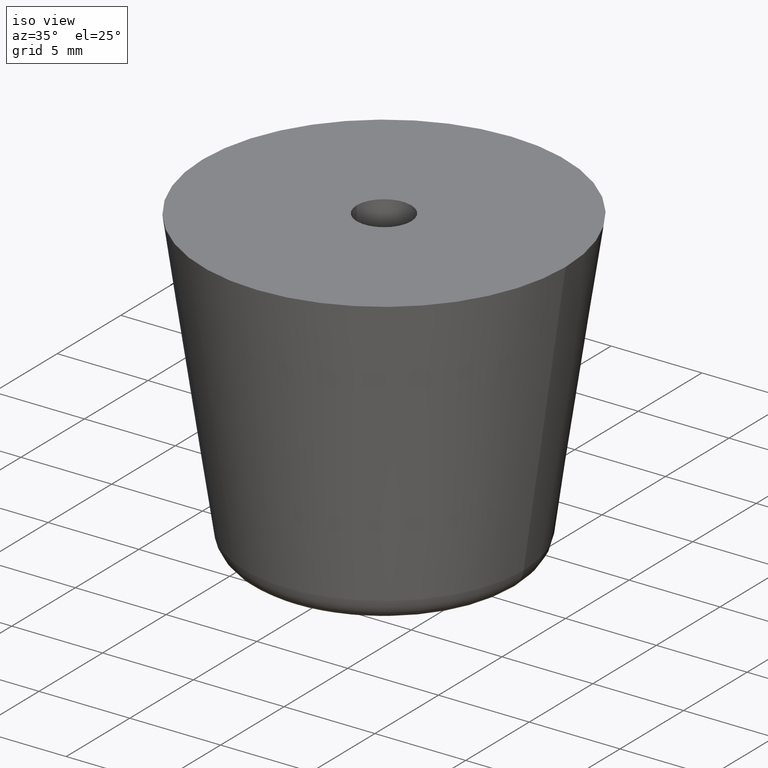
[diagram: clean part render]
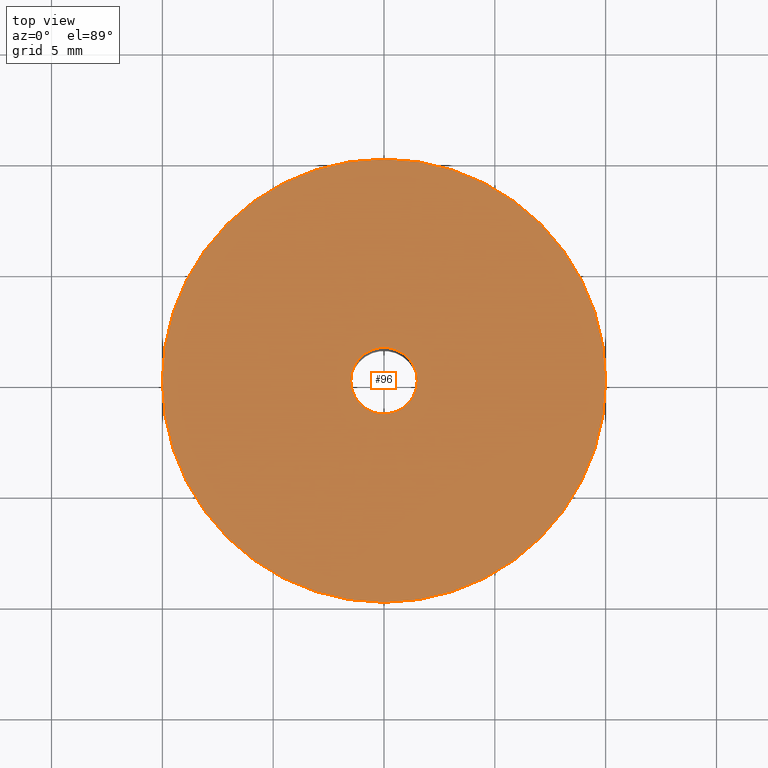
[diagram: tour spotlight — one face highlighted and labeled with its STEP entity id]
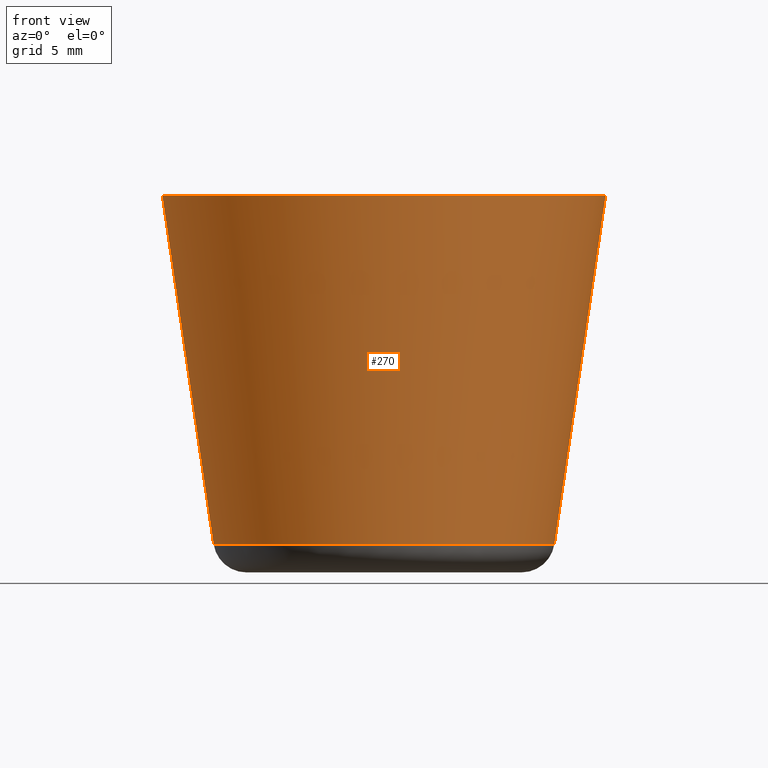
[diagram: tour spotlight — one face highlighted and labeled with its STEP entity id]
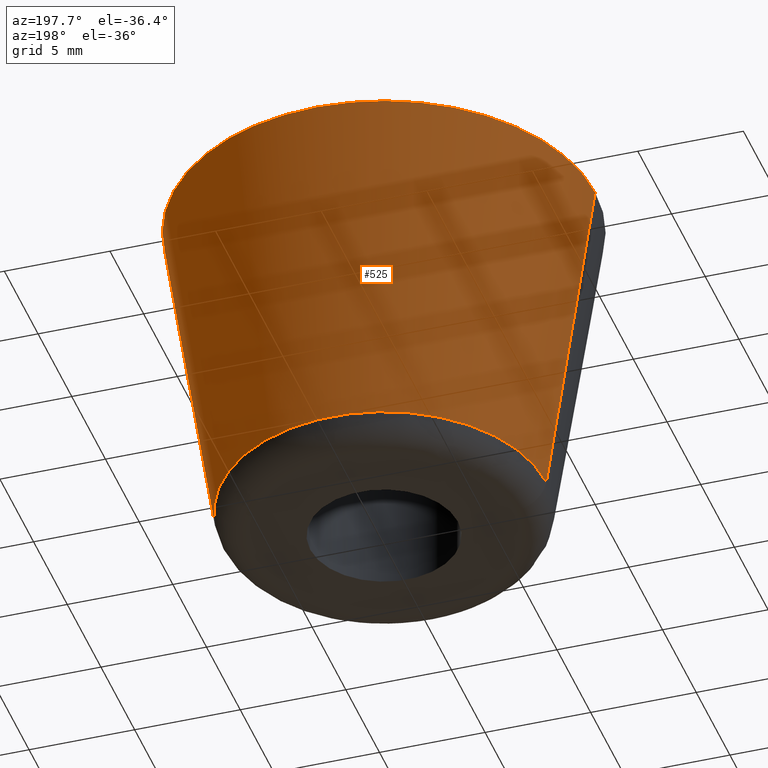
[diagram: tour spotlight — one face highlighted and labeled with its STEP entity id]
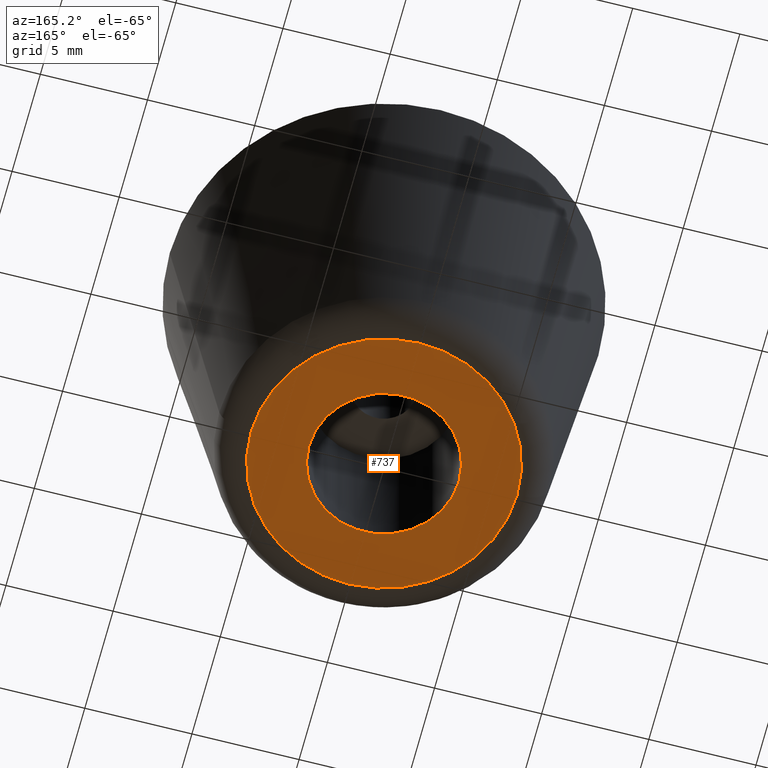
[diagram: tour spotlight — one face highlighted and labeled with its STEP entity id]
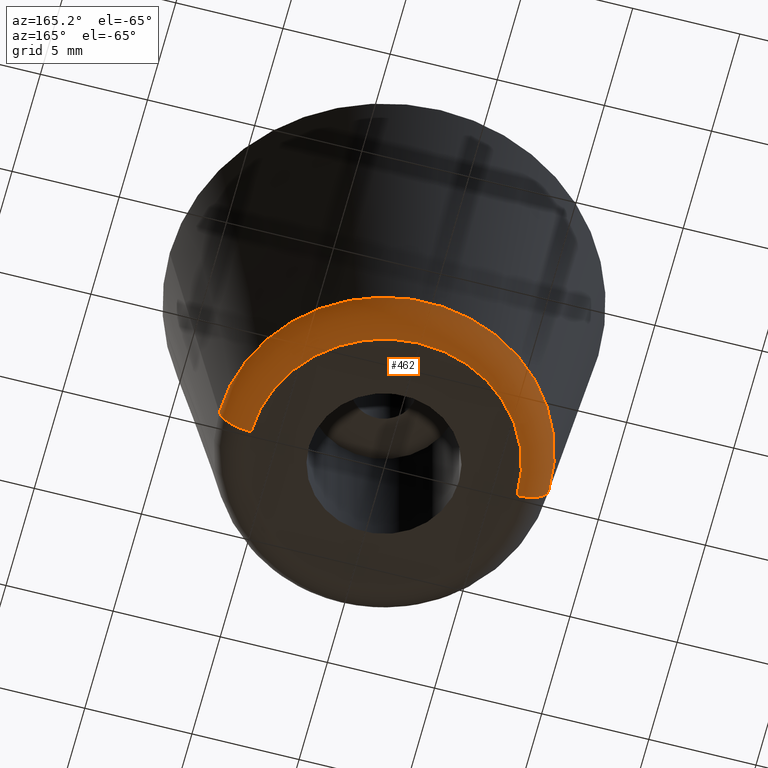
[diagram: tour spotlight — one face highlighted and labeled with its STEP entity id]
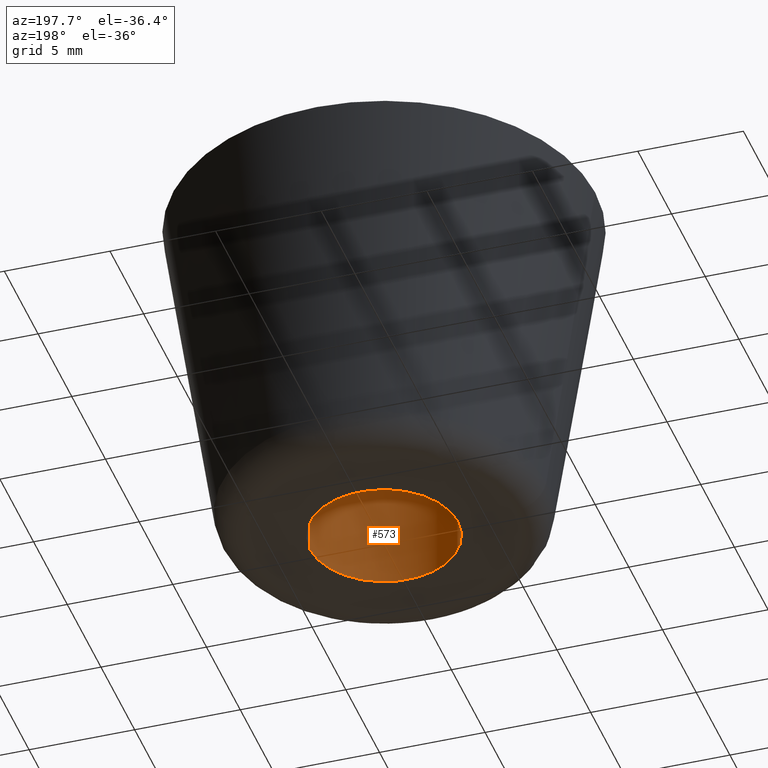
[diagram: tour spotlight — one face highlighted and labeled with its STEP entity id]
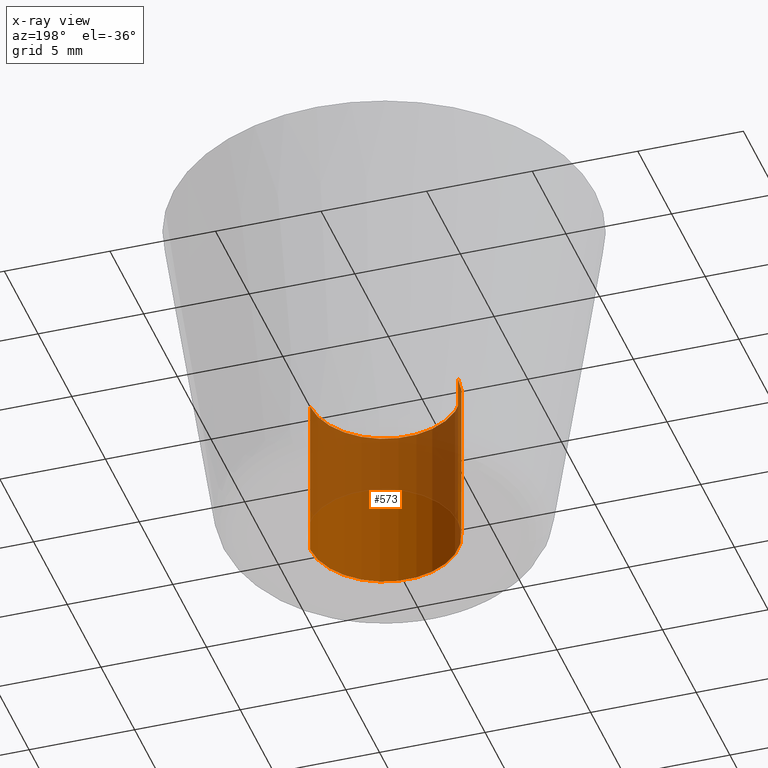
[diagram: x-ray of the same camera — body ghosted, this tour face saturated]
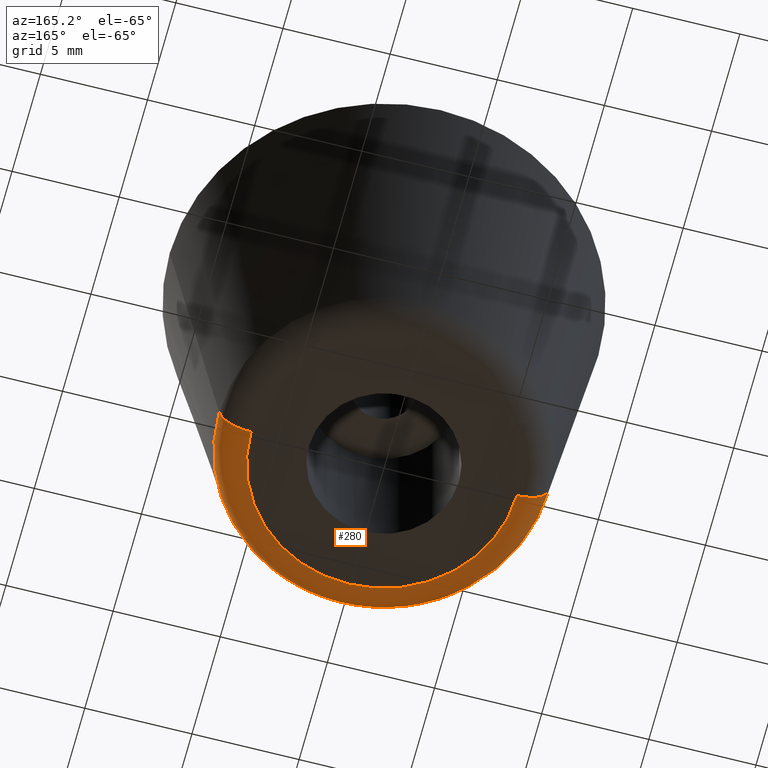
[diagram: tour spotlight — one face highlighted and labeled with its STEP entity id]
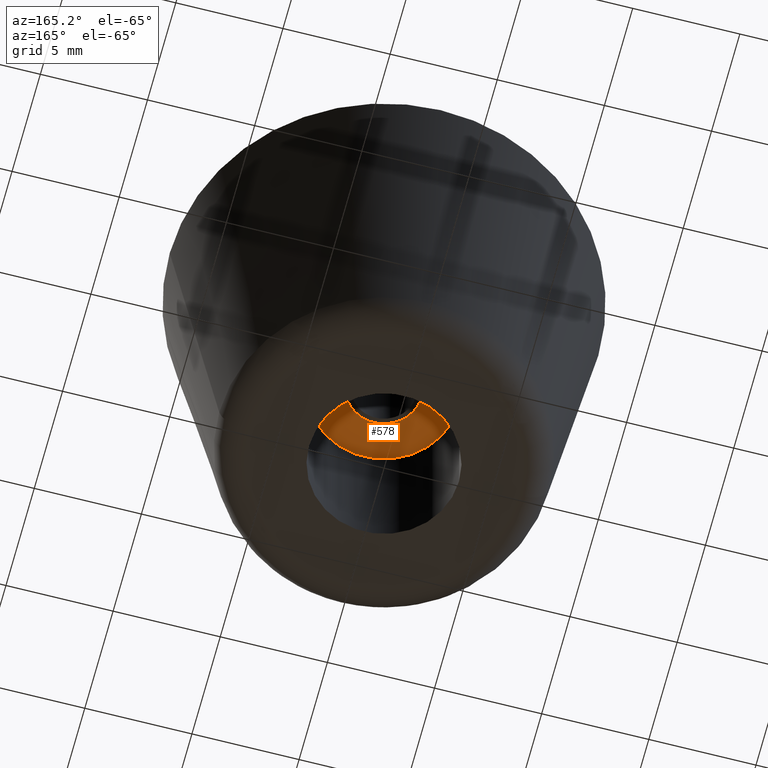
[diagram: tour spotlight — one face highlighted and labeled with its STEP entity id]
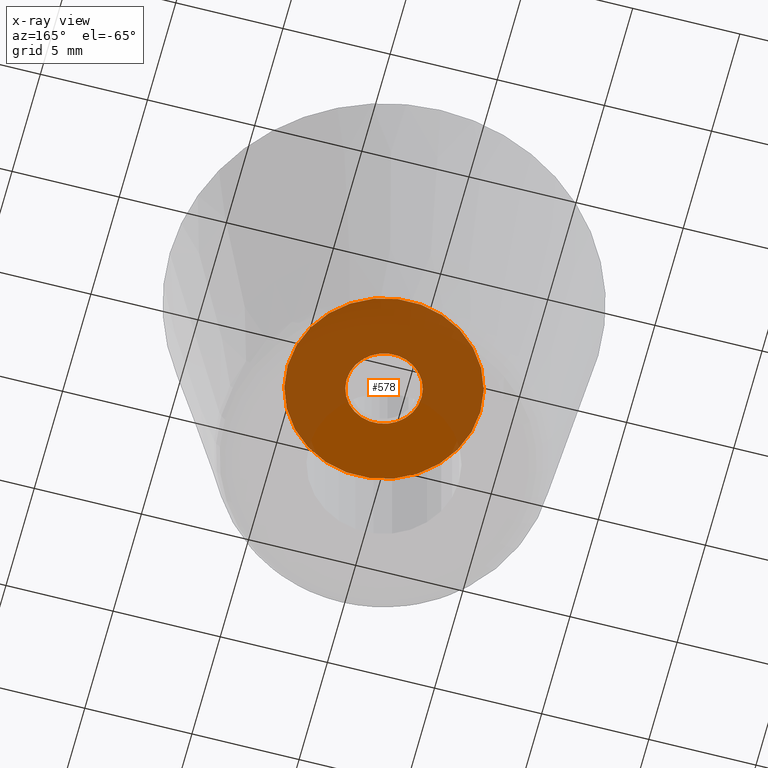
[diagram: x-ray of the same camera — body ghosted, this tour face saturated]
A machine part: a face-by-face anatomy tour. The part has 23 B-rep faces; the first image is the clean iso view, then the 8 largest visible faces are spotlighted one at a time (largest first), each with its STEP entity span.

Face 1 — top view, entity #96. In plain terms, the highlighted planar face has unit normal (0, 0, -1).
Definition (entity closure, byte-faithful):
#50 = DIRECTION ( 'NONE',  ( 0.0000000000000000000, 0.0000000000000000000, -1.000000000000000000 ) ) ;
#53 = FACE_OUTER_BOUND ( 'NONE', #454, .T. ) ;
#65 = CIRCLE ( 'NONE', #160, 10.00000000000000000 ) ;
#96 = ADVANCED_FACE ( 'NONE', ( #53, #376 ), #732, .F. ) ;
#147 = DIRECTION ( 'NONE',  ( 0.0000000000000000000, 0.0000000000000000000, -1.000000000000000000 ) ) ;
#151 = DIRECTION ( 'NONE',  ( 0.0000000000000000000, 0.0000000000000000000, -1.000000000000000000 ) ) ;
#160 = AXIS2_PLACEMENT_3D ( 'NONE', #307, #716, #369 ) ;
#161 = CARTESIAN_POINT ( 'NONE',  ( 10.00000000000000000, 0.0000000000000000000, 17.00000000000000000 ) ) ;
#175 = EDGE_CURVE ( 'NONE', #466, #616, #635, .T. ) ;
#218 = CARTESIAN_POINT ( 'NONE',  ( 1.500000000000000000, 1.836970198721029900E-016, 17.00000000000000000 ) ) ;
#235 = EDGE_CURVE ( 'NONE', #657, #761, #275, .T. ) ;
#261 = DIRECTION ( 'NONE',  ( -1.000000000000000000, 0.0000000000000000000, 0.0000000000000000000 ) ) ;
#266 = CARTESIAN_POINT ( 'NONE',  ( 0.0000000000000000000, 0.0000000000000000000, 17.00000000000000000 ) ) ;
#275 = CIRCLE ( 'NONE', #505, 1.500000000000000000 ) ;
#303 = ORIENTED_EDGE ( 'NONE', *, *, #175, .F. ) ;
#307 = CARTESIAN_POINT ( 'NONE',  ( 0.0000000000000000000, 0.0000000000000000000, 17.00000000000000000 ) ) ;
#329 = DIRECTION ( 'NONE',  ( -1.000000000000000000, 0.0000000000000000000, 0.0000000000000000000 ) ) ;
#330 = EDGE_CURVE ( 'NONE', #761, #657, #690, .T. ) ;
#369 = DIRECTION ( 'NONE',  ( -1.000000000000000000, 0.0000000000000000000, 0.0000000000000000000 ) ) ;
#376 = FACE_BOUND ( 'NONE', #554, .T. ) ;
#404 = ORIENTED_EDGE ( 'NONE', *, *, #448, .F. ) ;
#407 = CARTESIAN_POINT ( 'NONE',  ( 0.0000000000000000000, 0.0000000000000000000, 17.00000000000000000 ) ) ;
#411 = ORIENTED_EDGE ( 'NONE', *, *, #330, .T. ) ;
#448 = EDGE_CURVE ( 'NONE', #616, #466, #65, .T. ) ;
#454 = EDGE_LOOP ( 'NONE', ( #404, #303 ) ) ;
#466 = VERTEX_POINT ( 'NONE', #751 ) ;
#471 = DIRECTION ( 'NONE',  ( -1.000000000000000000, 0.0000000000000000000, 0.0000000000000000000 ) ) ;
#505 = AXIS2_PLACEMENT_3D ( 'NONE', #518, #151, #572 ) ;
#514 = CARTESIAN_POINT ( 'NONE',  ( 1.500000000000000000, 0.0000000000000000000, 17.00000000000000000 ) ) ;
#518 = CARTESIAN_POINT ( 'NONE',  ( 0.0000000000000000000, 0.0000000000000000000, 17.00000000000000000 ) ) ;
#542 = CARTESIAN_POINT ( 'NONE',  ( -1.500000000000000000, 0.0000000000000000000, 17.00000000000000000 ) ) ;
#547 = AXIS2_PLACEMENT_3D ( 'NONE', #514, #147, #261 ) ;
#554 = EDGE_LOOP ( 'NONE', ( #411, #643 ) ) ;
#572 = DIRECTION ( 'NONE',  ( -1.000000000000000000, 0.0000000000000000000, 0.0000000000000000000 ) ) ;
#616 = VERTEX_POINT ( 'NONE', #161 ) ;
#635 = CIRCLE ( 'NONE', #695, 10.00000000000000000 ) ;
#643 = ORIENTED_EDGE ( 'NONE', *, *, #235, .T. ) ;
#657 = VERTEX_POINT ( 'NONE', #218 ) ;
#678 = DIRECTION ( 'NONE',  ( 0.0000000000000000000, 0.0000000000000000000, -1.000000000000000000 ) ) ;
#690 = CIRCLE ( 'NONE', #696, 1.500000000000000000 ) ;
#695 = AXIS2_PLACEMENT_3D ( 'NONE', #407, #50, #471 ) ;
#696 = AXIS2_PLACEMENT_3D ( 'NONE', #266, #678, #329 ) ;
#716 = DIRECTION ( 'NONE',  ( 0.0000000000000000000, 0.0000000000000000000, -1.000000000000000000 ) ) ;
#732 = PLANE ( 'NONE',  #547 ) ;
#751 = CARTESIAN_POINT ( 'NONE',  ( -10.00000000000000000, 1.224646799147353300E-015, 17.00000000000000000 ) ) ;
#761 = VERTEX_POINT ( 'NONE', #542 ) ;

Face 2 — front view, entity #270. In plain terms, the highlighted conical surface has half-angle 8.366 deg.
Definition (entity closure, byte-faithful):
#30 = CARTESIAN_POINT ( 'NONE',  ( 0.0000000000000000000, 0.0000000000000000000, 17.00000000000000000 ) ) ;
#65 = CIRCLE ( 'NONE', #160, 10.00000000000000000 ) ;
#70 = VECTOR ( 'NONE', #629, 1000.000000000000100 ) ;
#74 = EDGE_CURVE ( 'NONE', #733, #616, #89, .T. ) ;
#83 = DIRECTION ( 'NONE',  ( -0.1454939886827439900, 1.781787475355036500E-017, 0.9893591356313365900 ) ) ;
#87 = DIRECTION ( 'NONE',  ( 0.0000000000000000000, 0.0000000000000000000, 1.000000000000000000 ) ) ;
#89 = LINE ( 'NONE', #128, #70 ) ;
#90 = EDGE_CURVE ( 'NONE', #427, #466, #688, .T. ) ;
#128 = CARTESIAN_POINT ( 'NONE',  ( 10.00000000000000000, 0.0000000000000000000, 17.00000000000000000 ) ) ;
#146 = CARTESIAN_POINT ( 'NONE',  ( 7.688494000000000400, 0.0000000000000000000, 1.281758999999894000 ) ) ;
#160 = AXIS2_PLACEMENT_3D ( 'NONE', #307, #716, #369 ) ;
#161 = CARTESIAN_POINT ( 'NONE',  ( 10.00000000000000000, 0.0000000000000000000, 17.00000000000000000 ) ) ;
#166 = CARTESIAN_POINT ( 'NONE',  ( 0.0000000000000000000, 0.0000000000000000000, 1.281758999999894000 ) ) ;
#210 = DIRECTION ( 'NONE',  ( 1.000000000000000000, 0.0000000000000000000, 0.0000000000000000000 ) ) ;
#221 = DIRECTION ( 'NONE',  ( -1.000000000000000000, 0.0000000000000000000, 0.0000000000000000000 ) ) ;
#270 = ADVANCED_FACE ( 'NONE', ( #671 ), #707, .T. ) ;
#281 = AXIS2_PLACEMENT_3D ( 'NONE', #166, #585, #221 ) ;
#286 = ORIENTED_EDGE ( 'NONE', *, *, #74, .T. ) ;
#307 = CARTESIAN_POINT ( 'NONE',  ( 0.0000000000000000000, 0.0000000000000000000, 17.00000000000000000 ) ) ;
#369 = DIRECTION ( 'NONE',  ( -1.000000000000000000, 0.0000000000000000000, 0.0000000000000000000 ) ) ;
#427 = VERTEX_POINT ( 'NONE', #541 ) ;
#432 = ORIENTED_EDGE ( 'NONE', *, *, #90, .F. ) ;
#445 = CARTESIAN_POINT ( 'NONE',  ( -10.00000000000000000, 1.224646799147353300E-015, 17.00000000000000000 ) ) ;
#448 = EDGE_CURVE ( 'NONE', #616, #466, #65, .T. ) ;
#466 = VERTEX_POINT ( 'NONE', #751 ) ;
#503 = EDGE_LOOP ( 'NONE', ( #432, #736, #286, #667 ) ) ;
#538 = VECTOR ( 'NONE', #83, 1000.000000000000100 ) ;
#541 = CARTESIAN_POINT ( 'NONE',  ( -7.688494000000000400, 1.083107877941858300E-015, 1.281758999999894000 ) ) ;
#548 = AXIS2_PLACEMENT_3D ( 'NONE', #30, #87, #210 ) ;
#585 = DIRECTION ( 'NONE',  ( 0.0000000000000000000, 0.0000000000000000000, -1.000000000000000000 ) ) ;
#616 = VERTEX_POINT ( 'NONE', #161 ) ;
#629 = DIRECTION ( 'NONE',  ( 0.1454939886827439900, 0.0000000000000000000, 0.9893591356313365900 ) ) ;
#667 = ORIENTED_EDGE ( 'NONE', *, *, #448, .T. ) ;
#671 = FACE_OUTER_BOUND ( 'NONE', #503, .T. ) ;
#684 = EDGE_CURVE ( 'NONE', #733, #427, #726, .T. ) ;
#688 = LINE ( 'NONE', #445, #538 ) ;
#707 = CONICAL_SURFACE ( 'NONE', #548, 10.00000000000000000, 0.1460122558796984600 ) ;
#716 = DIRECTION ( 'NONE',  ( 0.0000000000000000000, 0.0000000000000000000, -1.000000000000000000 ) ) ;
#726 = CIRCLE ( 'NONE', #281, 7.688493999999999500 ) ;
#733 = VERTEX_POINT ( 'NONE', #146 ) ;
#736 = ORIENTED_EDGE ( 'NONE', *, *, #684, .F. ) ;
#751 = CARTESIAN_POINT ( 'NONE',  ( -10.00000000000000000, 1.224646799147353300E-015, 17.00000000000000000 ) ) ;

Face 3 — auxiliary view, entity #525. In plain terms, the highlighted conical surface has half-angle 8.366 deg.
Definition (entity closure, byte-faithful):
#19 = CIRCLE ( 'NONE', #725, 7.688493999999999500 ) ;
#44 = CONICAL_SURFACE ( 'NONE', #441, 10.00000000000000000, 0.1460122558796984600 ) ;
#50 = DIRECTION ( 'NONE',  ( 0.0000000000000000000, 0.0000000000000000000, -1.000000000000000000 ) ) ;
#70 = VECTOR ( 'NONE', #629, 1000.000000000000100 ) ;
#74 = EDGE_CURVE ( 'NONE', #733, #616, #89, .T. ) ;
#83 = DIRECTION ( 'NONE',  ( -0.1454939886827439900, 1.781787475355036500E-017, 0.9893591356313365900 ) ) ;
#89 = LINE ( 'NONE', #128, #70 ) ;
#90 = EDGE_CURVE ( 'NONE', #427, #466, #688, .T. ) ;
#100 = DIRECTION ( 'NONE',  ( 1.000000000000000000, 0.0000000000000000000, 0.0000000000000000000 ) ) ;
#128 = CARTESIAN_POINT ( 'NONE',  ( 10.00000000000000000, 0.0000000000000000000, 17.00000000000000000 ) ) ;
#146 = CARTESIAN_POINT ( 'NONE',  ( 7.688494000000000400, 0.0000000000000000000, 1.281758999999894000 ) ) ;
#161 = CARTESIAN_POINT ( 'NONE',  ( 10.00000000000000000, 0.0000000000000000000, 17.00000000000000000 ) ) ;
#175 = EDGE_CURVE ( 'NONE', #466, #616, #635, .T. ) ;
#196 = EDGE_LOOP ( 'NONE', ( #558, #584, #217, #430 ) ) ;
#217 = ORIENTED_EDGE ( 'NONE', *, *, #175, .T. ) ;
#302 = DIRECTION ( 'NONE',  ( 0.0000000000000000000, 0.0000000000000000000, -1.000000000000000000 ) ) ;
#390 = EDGE_CURVE ( 'NONE', #427, #733, #19, .T. ) ;
#407 = CARTESIAN_POINT ( 'NONE',  ( 0.0000000000000000000, 0.0000000000000000000, 17.00000000000000000 ) ) ;
#427 = VERTEX_POINT ( 'NONE', #541 ) ;
#430 = ORIENTED_EDGE ( 'NONE', *, *, #74, .F. ) ;
#441 = AXIS2_PLACEMENT_3D ( 'NONE', #532, #586, #100 ) ;
#445 = CARTESIAN_POINT ( 'NONE',  ( -10.00000000000000000, 1.224646799147353300E-015, 17.00000000000000000 ) ) ;
#466 = VERTEX_POINT ( 'NONE', #751 ) ;
#471 = DIRECTION ( 'NONE',  ( -1.000000000000000000, 0.0000000000000000000, 0.0000000000000000000 ) ) ;
#525 = ADVANCED_FACE ( 'NONE', ( #551 ), #44, .T. ) ;
#532 = CARTESIAN_POINT ( 'NONE',  ( 0.0000000000000000000, 0.0000000000000000000, 17.00000000000000000 ) ) ;
#538 = VECTOR ( 'NONE', #83, 1000.000000000000100 ) ;
#541 = CARTESIAN_POINT ( 'NONE',  ( -7.688494000000000400, 1.083107877941858300E-015, 1.281758999999894000 ) ) ;
#551 = FACE_OUTER_BOUND ( 'NONE', #196, .T. ) ;
#558 = ORIENTED_EDGE ( 'NONE', *, *, #390, .F. ) ;
#584 = ORIENTED_EDGE ( 'NONE', *, *, #90, .T. ) ;
#586 = DIRECTION ( 'NONE',  ( 0.0000000000000000000, 0.0000000000000000000, 1.000000000000000000 ) ) ;
#616 = VERTEX_POINT ( 'NONE', #161 ) ;
#629 = DIRECTION ( 'NONE',  ( 0.1454939886827439900, 0.0000000000000000000, 0.9893591356313365900 ) ) ;
#635 = CIRCLE ( 'NONE', #695, 10.00000000000000000 ) ;
#654 = CARTESIAN_POINT ( 'NONE',  ( 0.0000000000000000000, 0.0000000000000000000, 1.281758999999894000 ) ) ;
#688 = LINE ( 'NONE', #445, #538 ) ;
#695 = AXIS2_PLACEMENT_3D ( 'NONE', #407, #50, #471 ) ;
#711 = DIRECTION ( 'NONE',  ( -1.000000000000000000, 0.0000000000000000000, 0.0000000000000000000 ) ) ;
#725 = AXIS2_PLACEMENT_3D ( 'NONE', #654, #302, #711 ) ;
#733 = VERTEX_POINT ( 'NONE', #146 ) ;
#751 = CARTESIAN_POINT ( 'NONE',  ( -10.00000000000000000, 1.224646799147353300E-015, 17.00000000000000000 ) ) ;

Face 4 — auxiliary view, entity #737. In plain terms, the highlighted planar face has unit normal (0, 0, 1).
Definition (entity closure, byte-faithful):
#3 = AXIS2_PLACEMENT_3D ( 'NONE', #483, #113, #545 ) ;
#4 = ORIENTED_EDGE ( 'NONE', *, *, #670, .F. ) ;
#18 = CIRCLE ( 'NONE', #623, 3.500000000000000000 ) ;
#22 = CARTESIAN_POINT ( 'NONE',  ( 6.204455000000000300, 8.506977582544995100E-016, 0.0000000000000000000 ) ) ;
#24 = FACE_OUTER_BOUND ( 'NONE', #627, .T. ) ;
#31 = EDGE_CURVE ( 'NONE', #331, #313, #628, .T. ) ;
#41 = CARTESIAN_POINT ( 'NONE',  ( -3.500000000000000000, 0.0000000000000000000, 0.0000000000000000000 ) ) ;
#45 = DIRECTION ( 'NONE',  ( 0.0000000000000000000, 0.0000000000000000000, -1.000000000000000000 ) ) ;
#84 = ORIENTED_EDGE ( 'NONE', *, *, #31, .T. ) ;
#107 = ORIENTED_EDGE ( 'NONE', *, *, #429, .T. ) ;
#113 = DIRECTION ( 'NONE',  ( 0.0000000000000000000, 0.0000000000000000000, -1.000000000000000000 ) ) ;
#129 = EDGE_LOOP ( 'NONE', ( #718, #4 ) ) ;
#152 = EDGE_CURVE ( 'NONE', #475, #740, #18, .T. ) ;
#163 = CARTESIAN_POINT ( 'NONE',  ( 3.500000000000000000, 4.286263797015736600E-016, 0.0000000000000000000 ) ) ;
#192 = CARTESIAN_POINT ( 'NONE',  ( 0.0000000000000000000, 0.0000000000000000000, 0.0000000000000000000 ) ) ;
#228 = CARTESIAN_POINT ( 'NONE',  ( 6.204455000000000300, 0.0000000000000000000, 0.0000000000000000000 ) ) ;
#257 = DIRECTION ( 'NONE',  ( -1.000000000000000000, 0.0000000000000000000, 0.0000000000000000000 ) ) ;
#267 = CARTESIAN_POINT ( 'NONE',  ( 0.0000000000000000000, 0.0000000000000000000, 0.0000000000000000000 ) ) ;
#298 = DIRECTION ( 'NONE',  ( 1.000000000000000000, 0.0000000000000000000, 0.0000000000000000000 ) ) ;
#313 = VERTEX_POINT ( 'NONE', #568 ) ;
#324 = AXIS2_PLACEMENT_3D ( 'NONE', #400, #45, #467 ) ;
#331 = VERTEX_POINT ( 'NONE', #22 ) ;
#334 = DIRECTION ( 'NONE',  ( -1.000000000000000000, 0.0000000000000000000, 0.0000000000000000000 ) ) ;
#381 = CIRCLE ( 'NONE', #3, 6.204455000000000300 ) ;
#400 = CARTESIAN_POINT ( 'NONE',  ( 0.0000000000000000000, 0.0000000000000000000, 0.0000000000000000000 ) ) ;
#429 = EDGE_CURVE ( 'NONE', #313, #331, #381, .T. ) ;
#443 = AXIS2_PLACEMENT_3D ( 'NONE', #228, #649, #298 ) ;
#467 = DIRECTION ( 'NONE',  ( -1.000000000000000000, 0.0000000000000000000, 0.0000000000000000000 ) ) ;
#475 = VERTEX_POINT ( 'NONE', #41 ) ;
#483 = CARTESIAN_POINT ( 'NONE',  ( 0.0000000000000000000, 0.0000000000000000000, 0.0000000000000000000 ) ) ;
#486 = AXIS2_PLACEMENT_3D ( 'NONE', #267, #682, #334 ) ;
#545 = DIRECTION ( 'NONE',  ( -1.000000000000000000, 0.0000000000000000000, 0.0000000000000000000 ) ) ;
#568 = CARTESIAN_POINT ( 'NONE',  ( -6.204455000000000300, 0.0000000000000000000, 0.0000000000000000000 ) ) ;
#592 = PLANE ( 'NONE',  #443 ) ;
#599 = CIRCLE ( 'NONE', #324, 3.500000000000000000 ) ;
#620 = DIRECTION ( 'NONE',  ( 0.0000000000000000000, 0.0000000000000000000, -1.000000000000000000 ) ) ;
#623 = AXIS2_PLACEMENT_3D ( 'NONE', #192, #620, #257 ) ;
#627 = EDGE_LOOP ( 'NONE', ( #107, #84 ) ) ;
#628 = CIRCLE ( 'NONE', #486, 6.204455000000000300 ) ;
#649 = DIRECTION ( 'NONE',  ( 0.0000000000000000000, 0.0000000000000000000, 1.000000000000000000 ) ) ;
#670 = EDGE_CURVE ( 'NONE', #740, #475, #599, .T. ) ;
#682 = DIRECTION ( 'NONE',  ( 0.0000000000000000000, 0.0000000000000000000, -1.000000000000000000 ) ) ;
#718 = ORIENTED_EDGE ( 'NONE', *, *, #152, .F. ) ;
#737 = ADVANCED_FACE ( 'NONE', ( #747, #24 ), #592, .F. ) ;
#740 = VERTEX_POINT ( 'NONE', #163 ) ;
#747 = FACE_BOUND ( 'NONE', #129, .T. ) ;

Face 5 — auxiliary view, entity #462. In plain terms, the highlighted toroidal blend (fillet) surface has major radius 6.2045 mm and minor (blend) radius 1.5 mm.
Definition (entity closure, byte-faithful):
#3 = AXIS2_PLACEMENT_3D ( 'NONE', #483, #113, #545 ) ;
#16 = EDGE_CURVE ( 'NONE', #427, #313, #473, .T. ) ;
#19 = CIRCLE ( 'NONE', #725, 7.688493999999999500 ) ;
#22 = CARTESIAN_POINT ( 'NONE',  ( 6.204455000000000300, 8.506977582544995100E-016, 0.0000000000000000000 ) ) ;
#86 = DIRECTION ( 'NONE',  ( -0.0000000000000000000, -1.000000000000000000, -0.0000000000000000000 ) ) ;
#91 = ORIENTED_EDGE ( 'NONE', *, *, #16, .F. ) ;
#99 = DIRECTION ( 'NONE',  ( 0.0000000000000000000, 0.0000000000000000000, -1.000000000000000000 ) ) ;
#113 = DIRECTION ( 'NONE',  ( 0.0000000000000000000, 0.0000000000000000000, -1.000000000000000000 ) ) ;
#135 = ORIENTED_EDGE ( 'NONE', *, *, #553, .T. ) ;
#146 = CARTESIAN_POINT ( 'NONE',  ( 7.688494000000000400, 0.0000000000000000000, 1.281758999999894000 ) ) ;
#149 = DIRECTION ( 'NONE',  ( 0.0000000000000000000, 0.0000000000000000000, -1.000000000000000000 ) ) ;
#216 = ORIENTED_EDGE ( 'NONE', *, *, #390, .T. ) ;
#302 = DIRECTION ( 'NONE',  ( 0.0000000000000000000, 0.0000000000000000000, -1.000000000000000000 ) ) ;
#305 = DIRECTION ( 'NONE',  ( -1.224646799147353200E-016, 1.000000000000000000, 0.0000000000000000000 ) ) ;
#313 = VERTEX_POINT ( 'NONE', #568 ) ;
#331 = VERTEX_POINT ( 'NONE', #22 ) ;
#365 = AXIS2_PLACEMENT_3D ( 'NONE', #465, #99, #530 ) ;
#381 = CIRCLE ( 'NONE', #3, 6.204455000000000300 ) ;
#390 = EDGE_CURVE ( 'NONE', #427, #733, #19, .T. ) ;
#395 = AXIS2_PLACEMENT_3D ( 'NONE', #659, #305, #714 ) ;
#427 = VERTEX_POINT ( 'NONE', #541 ) ;
#429 = EDGE_CURVE ( 'NONE', #313, #331, #381, .T. ) ;
#440 = AXIS2_PLACEMENT_3D ( 'NONE', #526, #86, #149 ) ;
#462 = ADVANCED_FACE ( 'NONE', ( #679 ), #515, .T. ) ;
#465 = CARTESIAN_POINT ( 'NONE',  ( 0.0000000000000000000, 0.0000000000000000000, 1.500000000000000000 ) ) ;
#473 = CIRCLE ( 'NONE', #440, 1.500000000000000000 ) ;
#483 = CARTESIAN_POINT ( 'NONE',  ( 0.0000000000000000000, 0.0000000000000000000, 0.0000000000000000000 ) ) ;
#515 = TOROIDAL_SURFACE ( 'NONE', #365, 6.204455000000000300, 1.500000000000000000 ) ;
#526 = CARTESIAN_POINT ( 'NONE',  ( -6.204455000000000300, 0.0000000000000000000, 1.500000000000000000 ) ) ;
#530 = DIRECTION ( 'NONE',  ( -1.000000000000000000, 0.0000000000000000000, 0.0000000000000000000 ) ) ;
#541 = CARTESIAN_POINT ( 'NONE',  ( -7.688494000000000400, 1.083107877941858300E-015, 1.281758999999894000 ) ) ;
#545 = DIRECTION ( 'NONE',  ( -1.000000000000000000, 0.0000000000000000000, 0.0000000000000000000 ) ) ;
#553 = EDGE_CURVE ( 'NONE', #733, #331, #680, .T. ) ;
#567 = EDGE_LOOP ( 'NONE', ( #216, #135, #648, #91 ) ) ;
#568 = CARTESIAN_POINT ( 'NONE',  ( -6.204455000000000300, 0.0000000000000000000, 0.0000000000000000000 ) ) ;
#648 = ORIENTED_EDGE ( 'NONE', *, *, #429, .F. ) ;
#654 = CARTESIAN_POINT ( 'NONE',  ( 0.0000000000000000000, 0.0000000000000000000, 1.281758999999894000 ) ) ;
#659 = CARTESIAN_POINT ( 'NONE',  ( 6.204455000000000300, 7.598265956203791300E-016, 1.500000000000000000 ) ) ;
#679 = FACE_OUTER_BOUND ( 'NONE', #567, .T. ) ;
#680 = CIRCLE ( 'NONE', #395, 1.500000000000000400 ) ;
#711 = DIRECTION ( 'NONE',  ( -1.000000000000000000, 0.0000000000000000000, 0.0000000000000000000 ) ) ;
#714 = DIRECTION ( 'NONE',  ( -1.000000000000000000, -1.224646799147352700E-016, 0.0000000000000000000 ) ) ;
#725 = AXIS2_PLACEMENT_3D ( 'NONE', #654, #302, #711 ) ;
#733 = VERTEX_POINT ( 'NONE', #146 ) ;

Face 6 — auxiliary view, entity #573. An x-ray twin of the same camera follows (body ghosted, this face saturated) — the face is partly hidden behind the body. In plain terms, the highlighted cylindrical surface (partial cylindrical patch) has radius 3.5 mm, axis along (0, 0, -1).
Definition (entity closure, byte-faithful):
#8 = DIRECTION ( 'NONE',  ( -1.000000000000000000, 0.0000000000000000000, 0.0000000000000000000 ) ) ;
#41 = CARTESIAN_POINT ( 'NONE',  ( -3.500000000000000000, 0.0000000000000000000, 0.0000000000000000000 ) ) ;
#45 = DIRECTION ( 'NONE',  ( 0.0000000000000000000, 0.0000000000000000000, -1.000000000000000000 ) ) ;
#62 = ORIENTED_EDGE ( 'NONE', *, *, #632, .T. ) ;
#66 = VECTOR ( 'NONE', #750, 1000.000000000000000 ) ;
#125 = CARTESIAN_POINT ( 'NONE',  ( -3.500000000000000000, 0.0000000000000000000, 7.999999999999899600 ) ) ;
#145 = CARTESIAN_POINT ( 'NONE',  ( 0.0000000000000000000, 0.0000000000000000000, 7.999999999999899600 ) ) ;
#156 = VECTOR ( 'NONE', #319, 1000.000000000000000 ) ;
#159 = EDGE_CURVE ( 'NONE', #591, #475, #317, .T. ) ;
#163 = CARTESIAN_POINT ( 'NONE',  ( 3.500000000000000000, 4.286263797015736600E-016, 0.0000000000000000000 ) ) ;
#187 = LINE ( 'NONE', #639, #66 ) ;
#198 = AXIS2_PLACEMENT_3D ( 'NONE', #366, #603, #8 ) ;
#205 = DIRECTION ( 'NONE',  ( -1.000000000000000000, 0.0000000000000000000, 0.0000000000000000000 ) ) ;
#214 = CARTESIAN_POINT ( 'NONE',  ( 3.500000000000000000, 4.286263797015736600E-016, 7.999999999999899600 ) ) ;
#271 = ORIENTED_EDGE ( 'NONE', *, *, #322, .F. ) ;
#315 = EDGE_LOOP ( 'NONE', ( #271, #62, #738, #644 ) ) ;
#317 = LINE ( 'NONE', #728, #156 ) ;
#319 = DIRECTION ( 'NONE',  ( 0.0000000000000000000, 0.0000000000000000000, -1.000000000000000000 ) ) ;
#322 = EDGE_CURVE ( 'NONE', #614, #591, #377, .T. ) ;
#324 = AXIS2_PLACEMENT_3D ( 'NONE', #400, #45, #467 ) ;
#366 = CARTESIAN_POINT ( 'NONE',  ( 0.0000000000000000000, 0.0000000000000000000, 0.0000000000000000000 ) ) ;
#377 = CIRCLE ( 'NONE', #624, 3.500000000000000000 ) ;
#400 = CARTESIAN_POINT ( 'NONE',  ( 0.0000000000000000000, 0.0000000000000000000, 0.0000000000000000000 ) ) ;
#467 = DIRECTION ( 'NONE',  ( -1.000000000000000000, 0.0000000000000000000, 0.0000000000000000000 ) ) ;
#475 = VERTEX_POINT ( 'NONE', #41 ) ;
#509 = CYLINDRICAL_SURFACE ( 'NONE', #198, 3.500000000000000000 ) ;
#536 = FACE_OUTER_BOUND ( 'NONE', #315, .T. ) ;
#563 = DIRECTION ( 'NONE',  ( 0.0000000000000000000, 0.0000000000000000000, -1.000000000000000000 ) ) ;
#573 = ADVANCED_FACE ( 'NONE', ( #536 ), #509, .F. ) ;
#591 = VERTEX_POINT ( 'NONE', #125 ) ;
#599 = CIRCLE ( 'NONE', #324, 3.500000000000000000 ) ;
#603 = DIRECTION ( 'NONE',  ( 0.0000000000000000000, 0.0000000000000000000, -1.000000000000000000 ) ) ;
#614 = VERTEX_POINT ( 'NONE', #214 ) ;
#624 = AXIS2_PLACEMENT_3D ( 'NONE', #145, #563, #205 ) ;
#632 = EDGE_CURVE ( 'NONE', #614, #740, #187, .T. ) ;
#639 = CARTESIAN_POINT ( 'NONE',  ( 3.500000000000000000, 4.286263797015736600E-016, 0.0000000000000000000 ) ) ;
#644 = ORIENTED_EDGE ( 'NONE', *, *, #159, .F. ) ;
#670 = EDGE_CURVE ( 'NONE', #740, #475, #599, .T. ) ;
#728 = CARTESIAN_POINT ( 'NONE',  ( -3.500000000000000000, 0.0000000000000000000, 0.0000000000000000000 ) ) ;
#738 = ORIENTED_EDGE ( 'NONE', *, *, #670, .T. ) ;
#740 = VERTEX_POINT ( 'NONE', #163 ) ;
#750 = DIRECTION ( 'NONE',  ( 0.0000000000000000000, 0.0000000000000000000, -1.000000000000000000 ) ) ;

Face 7 — auxiliary view, entity #280. In plain terms, the highlighted toroidal blend (fillet) surface has major radius 6.2045 mm and minor (blend) radius 1.5 mm.
Definition (entity closure, byte-faithful):
#16 = EDGE_CURVE ( 'NONE', #427, #313, #473, .T. ) ;
#22 = CARTESIAN_POINT ( 'NONE',  ( 6.204455000000000300, 8.506977582544995100E-016, 0.0000000000000000000 ) ) ;
#31 = EDGE_CURVE ( 'NONE', #331, #313, #628, .T. ) ;
#78 = CARTESIAN_POINT ( 'NONE',  ( 0.0000000000000000000, 0.0000000000000000000, 1.500000000000000000 ) ) ;
#86 = DIRECTION ( 'NONE',  ( -0.0000000000000000000, -1.000000000000000000, -0.0000000000000000000 ) ) ;
#146 = CARTESIAN_POINT ( 'NONE',  ( 7.688494000000000400, 0.0000000000000000000, 1.281758999999894000 ) ) ;
#149 = DIRECTION ( 'NONE',  ( 0.0000000000000000000, 0.0000000000000000000, -1.000000000000000000 ) ) ;
#166 = CARTESIAN_POINT ( 'NONE',  ( 0.0000000000000000000, 0.0000000000000000000, 1.281758999999894000 ) ) ;
#173 = ORIENTED_EDGE ( 'NONE', *, *, #684, .T. ) ;
#221 = DIRECTION ( 'NONE',  ( -1.000000000000000000, 0.0000000000000000000, 0.0000000000000000000 ) ) ;
#230 = TOROIDAL_SURFACE ( 'NONE', #662, 6.204455000000000300, 1.500000000000000000 ) ;
#262 = DIRECTION ( 'NONE',  ( 0.0000000000000000000, 0.0000000000000000000, -1.000000000000000000 ) ) ;
#267 = CARTESIAN_POINT ( 'NONE',  ( 0.0000000000000000000, 0.0000000000000000000, 0.0000000000000000000 ) ) ;
#274 = ORIENTED_EDGE ( 'NONE', *, *, #553, .F. ) ;
#280 = ADVANCED_FACE ( 'NONE', ( #559 ), #230, .T. ) ;
#281 = AXIS2_PLACEMENT_3D ( 'NONE', #166, #585, #221 ) ;
#293 = ORIENTED_EDGE ( 'NONE', *, *, #31, .F. ) ;
#305 = DIRECTION ( 'NONE',  ( -1.224646799147353200E-016, 1.000000000000000000, 0.0000000000000000000 ) ) ;
#313 = VERTEX_POINT ( 'NONE', #568 ) ;
#331 = VERTEX_POINT ( 'NONE', #22 ) ;
#334 = DIRECTION ( 'NONE',  ( -1.000000000000000000, 0.0000000000000000000, 0.0000000000000000000 ) ) ;
#380 = DIRECTION ( 'NONE',  ( -1.000000000000000000, 0.0000000000000000000, 0.0000000000000000000 ) ) ;
#395 = AXIS2_PLACEMENT_3D ( 'NONE', #659, #305, #714 ) ;
#427 = VERTEX_POINT ( 'NONE', #541 ) ;
#440 = AXIS2_PLACEMENT_3D ( 'NONE', #526, #86, #149 ) ;
#473 = CIRCLE ( 'NONE', #440, 1.500000000000000000 ) ;
#486 = AXIS2_PLACEMENT_3D ( 'NONE', #267, #682, #334 ) ;
#523 = ORIENTED_EDGE ( 'NONE', *, *, #16, .T. ) ;
#526 = CARTESIAN_POINT ( 'NONE',  ( -6.204455000000000300, 0.0000000000000000000, 1.500000000000000000 ) ) ;
#541 = CARTESIAN_POINT ( 'NONE',  ( -7.688494000000000400, 1.083107877941858300E-015, 1.281758999999894000 ) ) ;
#553 = EDGE_CURVE ( 'NONE', #733, #331, #680, .T. ) ;
#559 = FACE_OUTER_BOUND ( 'NONE', #706, .T. ) ;
#568 = CARTESIAN_POINT ( 'NONE',  ( -6.204455000000000300, 0.0000000000000000000, 0.0000000000000000000 ) ) ;
#585 = DIRECTION ( 'NONE',  ( 0.0000000000000000000, 0.0000000000000000000, -1.000000000000000000 ) ) ;
#628 = CIRCLE ( 'NONE', #486, 6.204455000000000300 ) ;
#659 = CARTESIAN_POINT ( 'NONE',  ( 6.204455000000000300, 7.598265956203791300E-016, 1.500000000000000000 ) ) ;
#662 = AXIS2_PLACEMENT_3D ( 'NONE', #78, #262, #380 ) ;
#680 = CIRCLE ( 'NONE', #395, 1.500000000000000400 ) ;
#682 = DIRECTION ( 'NONE',  ( 0.0000000000000000000, 0.0000000000000000000, -1.000000000000000000 ) ) ;
#684 = EDGE_CURVE ( 'NONE', #733, #427, #726, .T. ) ;
#706 = EDGE_LOOP ( 'NONE', ( #274, #173, #523, #293 ) ) ;
#714 = DIRECTION ( 'NONE',  ( -1.000000000000000000, -1.224646799147352700E-016, 0.0000000000000000000 ) ) ;
#726 = CIRCLE ( 'NONE', #281, 7.688493999999999500 ) ;
#733 = VERTEX_POINT ( 'NONE', #146 ) ;

Face 8 — auxiliary view, entity #578. An x-ray twin of the same camera follows (body ghosted, this face saturated) — the face is partly hidden behind the body. In plain terms, the highlighted planar face has unit normal (0, 0, 1).
Definition (entity closure, byte-faithful):
#23 = CARTESIAN_POINT ( 'NONE',  ( 0.0000000000000000000, 0.0000000000000000000, 7.999999999999899600 ) ) ;
#28 = DIRECTION ( 'NONE',  ( -1.000000000000000000, 0.0000000000000000000, 0.0000000000000000000 ) ) ;
#37 = AXIS2_PLACEMENT_3D ( 'NONE', #299, #709, #358 ) ;
#61 = PLANE ( 'NONE',  #238 ) ;
#64 = DIRECTION ( 'NONE',  ( 0.0000000000000000000, 0.0000000000000000000, 1.000000000000000000 ) ) ;
#73 = DIRECTION ( 'NONE',  ( 0.0000000000000000000, 0.0000000000000000000, -1.000000000000000000 ) ) ;
#81 = DIRECTION ( 'NONE',  ( -1.000000000000000000, 0.0000000000000000000, 0.0000000000000000000 ) ) ;
#101 = VERTEX_POINT ( 'NONE', #250 ) ;
#104 = EDGE_CURVE ( 'NONE', #455, #227, #355, .T. ) ;
#105 = ORIENTED_EDGE ( 'NONE', *, *, #406, .F. ) ;
#127 = EDGE_LOOP ( 'NONE', ( #321, #105 ) ) ;
#142 = DIRECTION ( 'NONE',  ( 0.0000000000000000000, 0.0000000000000000000, -1.000000000000000000 ) ) ;
#197 = AXIS2_PLACEMENT_3D ( 'NONE', #23, #444, #81 ) ;
#201 = FACE_OUTER_BOUND ( 'NONE', #391, .T. ) ;
#227 = VERTEX_POINT ( 'NONE', #683 ) ;
#238 = AXIS2_PLACEMENT_3D ( 'NONE', #239, #64, #490 ) ;
#239 = CARTESIAN_POINT ( 'NONE',  ( 4.500000000000000000, 0.0000000000000000000, 7.999999999999899600 ) ) ;
#244 = CIRCLE ( 'NONE', #37, 1.750000000000000000 ) ;
#250 = CARTESIAN_POINT ( 'NONE',  ( 4.500000000000000000, 5.510910596163088600E-016, 7.999999999999899600 ) ) ;
#299 = CARTESIAN_POINT ( 'NONE',  ( 0.0000000000000000000, 0.0000000000000000000, 7.999999999999899600 ) ) ;
#321 = ORIENTED_EDGE ( 'NONE', *, *, #104, .F. ) ;
#351 = CARTESIAN_POINT ( 'NONE',  ( -4.500000000000000000, 0.0000000000000000000, 7.999999999999899600 ) ) ;
#354 = EDGE_CURVE ( 'NONE', #101, #722, #636, .T. ) ;
#355 = CIRCLE ( 'NONE', #420, 1.750000000000000000 ) ;
#358 = DIRECTION ( 'NONE',  ( -1.000000000000000000, 0.0000000000000000000, 0.0000000000000000000 ) ) ;
#372 = FACE_BOUND ( 'NONE', #127, .T. ) ;
#391 = EDGE_LOOP ( 'NONE', ( #566, #493 ) ) ;
#406 = EDGE_CURVE ( 'NONE', #227, #455, #244, .T. ) ;
#420 = AXIS2_PLACEMENT_3D ( 'NONE', #506, #142, #28 ) ;
#435 = CIRCLE ( 'NONE', #197, 4.500000000000000000 ) ;
#436 = CARTESIAN_POINT ( 'NONE',  ( 0.0000000000000000000, 0.0000000000000000000, 7.999999999999899600 ) ) ;
#444 = DIRECTION ( 'NONE',  ( 0.0000000000000000000, 0.0000000000000000000, -1.000000000000000000 ) ) ;
#455 = VERTEX_POINT ( 'NONE', #489 ) ;
#474 = EDGE_CURVE ( 'NONE', #722, #101, #435, .T. ) ;
#489 = CARTESIAN_POINT ( 'NONE',  ( -1.750000000000000000, 0.0000000000000000000, 7.999999999999899600 ) ) ;
#490 = DIRECTION ( 'NONE',  ( 1.000000000000000000, 0.0000000000000000000, 0.0000000000000000000 ) ) ;
#493 = ORIENTED_EDGE ( 'NONE', *, *, #354, .T. ) ;
#500 = DIRECTION ( 'NONE',  ( -1.000000000000000000, 0.0000000000000000000, 0.0000000000000000000 ) ) ;
#506 = CARTESIAN_POINT ( 'NONE',  ( 0.0000000000000000000, 0.0000000000000000000, 7.999999999999899600 ) ) ;
#566 = ORIENTED_EDGE ( 'NONE', *, *, #474, .T. ) ;
#578 = ADVANCED_FACE ( 'NONE', ( #372, #201 ), #61, .F. ) ;
#636 = CIRCLE ( 'NONE', #730, 4.500000000000000000 ) ;
#683 = CARTESIAN_POINT ( 'NONE',  ( 1.750000000000000000, 2.143131898507868300E-016, 7.999999999999899600 ) ) ;
#709 = DIRECTION ( 'NONE',  ( 0.0000000000000000000, 0.0000000000000000000, -1.000000000000000000 ) ) ;
#722 = VERTEX_POINT ( 'NONE', #351 ) ;
#730 = AXIS2_PLACEMENT_3D ( 'NONE', #436, #73, #500 ) ;